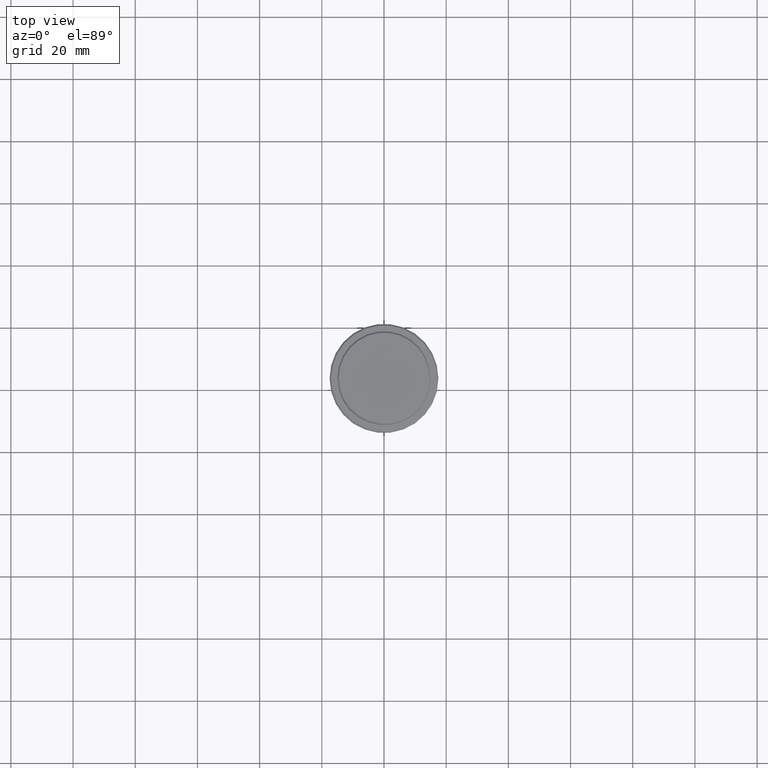
[diagram: clean part render]
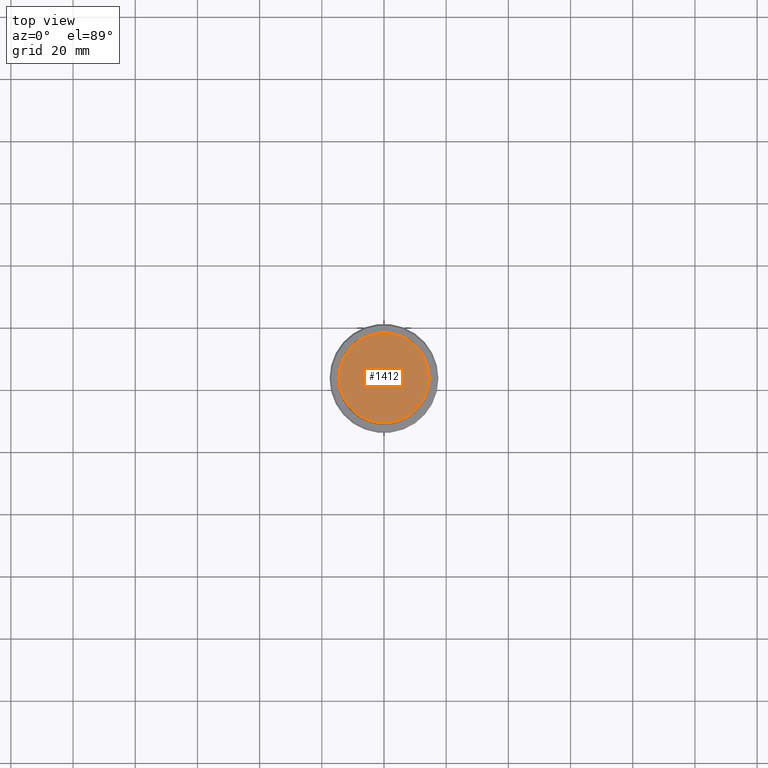
[diagram: same view with one face highlighted and labeled with its STEP entity id]
A machine part, top view. The second image highlights one B-rep face of the part: STEP entity #1412.
In plain terms, the highlighted planar face has unit normal (0, -0, 1).
Its self-contained STEP definition (entity closure, byte-faithful):
#19 = VERTEX_POINT ( 'NONE', #1125 ) ;
#54 = ORIENTED_EDGE ( 'NONE', *, *, #659, .T. ) ;
#66 = EDGE_LOOP ( 'NONE', ( #686, #54 ) ) ;
#71 = AXIS2_PLACEMENT_3D ( 'NONE', #516, #1068, #296 ) ;
#114 = CARTESIAN_POINT ( 'NONE',  ( 0.000000000000000000, 0.000000000000000000, 0.000000000000000000 ) ) ;
#127 = CARTESIAN_POINT ( 'NONE',  ( 0.000000000000000000, 0.000000000000000000, 0.000000000000000000 ) ) ;
#296 = DIRECTION ( 'NONE',  ( 1.000000000000000000, 0.000000000000000000, 0.000000000000000000 ) ) ;
#364 = AXIS2_PLACEMENT_3D ( 'NONE', #114, #457, #427 ) ;
#427 = DIRECTION ( 'NONE',  ( 1.000000000000000000, 0.000000000000000000, 0.000000000000000000 ) ) ;
#433 = DIRECTION ( 'NONE',  ( 1.000000000000000000, 0.000000000000000000, 0.000000000000000000 ) ) ;
#457 = DIRECTION ( 'NONE',  ( -0.000000000000000000, -0.000000000000000000, 1.000000000000000000 ) ) ;
#516 = CARTESIAN_POINT ( 'NONE',  ( 0.000000000000000000, 0.000000000000000000, 0.000000000000000000 ) ) ;
#625 = FACE_OUTER_BOUND ( 'NONE', #66, .T. ) ;
#659 = EDGE_CURVE ( 'NONE', #19, #873, #1051, .T. ) ;
#662 = DIRECTION ( 'NONE',  ( -0.000000000000000000, -0.000000000000000000, 1.000000000000000000 ) ) ;
#686 = ORIENTED_EDGE ( 'NONE', *, *, #724, .T. ) ;
#724 = EDGE_CURVE ( 'NONE', #873, #19, #947, .T. ) ;
#797 = CARTESIAN_POINT ( 'NONE',  ( -14.49999999999995559, 0.000000000000000000, 0.000000000000000000 ) ) ;
#873 = VERTEX_POINT ( 'NONE', #797 ) ;
#947 = CIRCLE ( 'NONE', #364, 14.49999999999995559 ) ;
#1051 = CIRCLE ( 'NONE', #1364, 14.49999999999995559 ) ;
#1068 = DIRECTION ( 'NONE',  ( 0.000000000000000000, -0.000000000000000000, 1.000000000000000000 ) ) ;
#1125 = CARTESIAN_POINT ( 'NONE',  ( 14.49999999999995559, 1.806354028742343041E-15, 0.000000000000000000 ) ) ;
#1159 = PLANE ( 'NONE',  #71 ) ;
#1364 = AXIS2_PLACEMENT_3D ( 'NONE', #127, #662, #433 ) ;
#1412 = ADVANCED_FACE ( 'NONE', ( #625 ), #1159, .T. ) ;